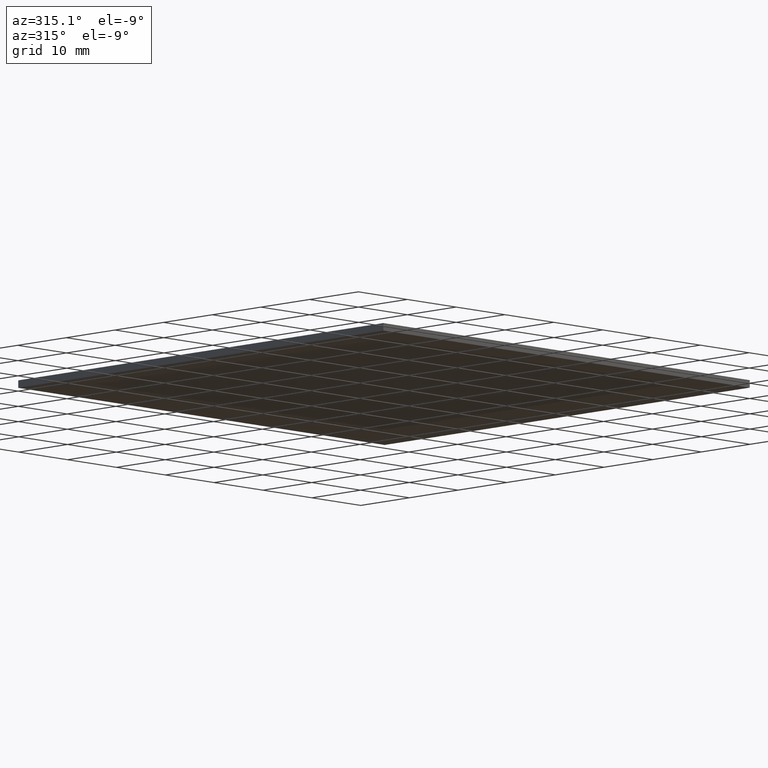
[diagram: clean part render]
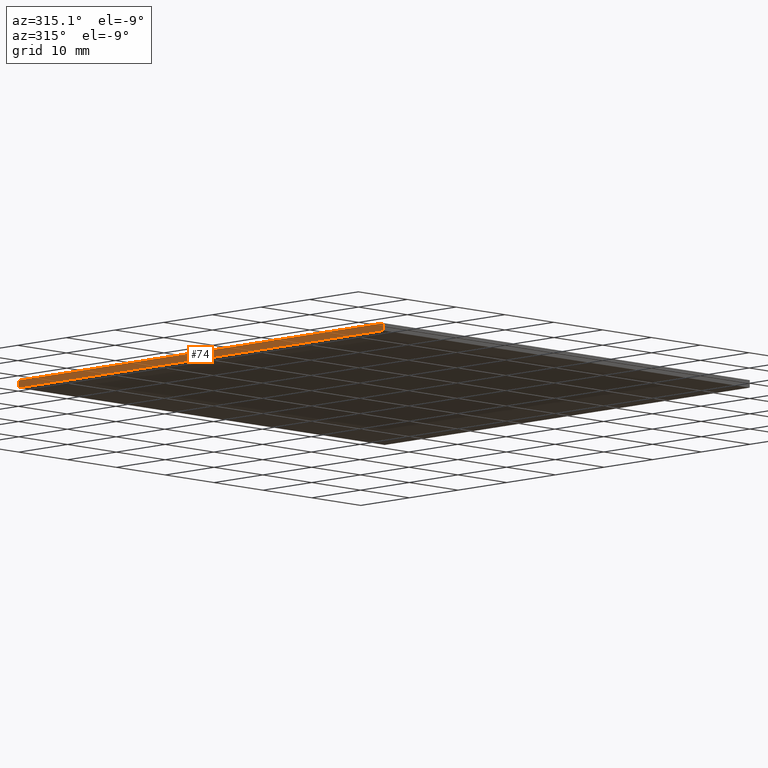
[diagram: same view with one face highlighted and labeled with its STEP entity id]
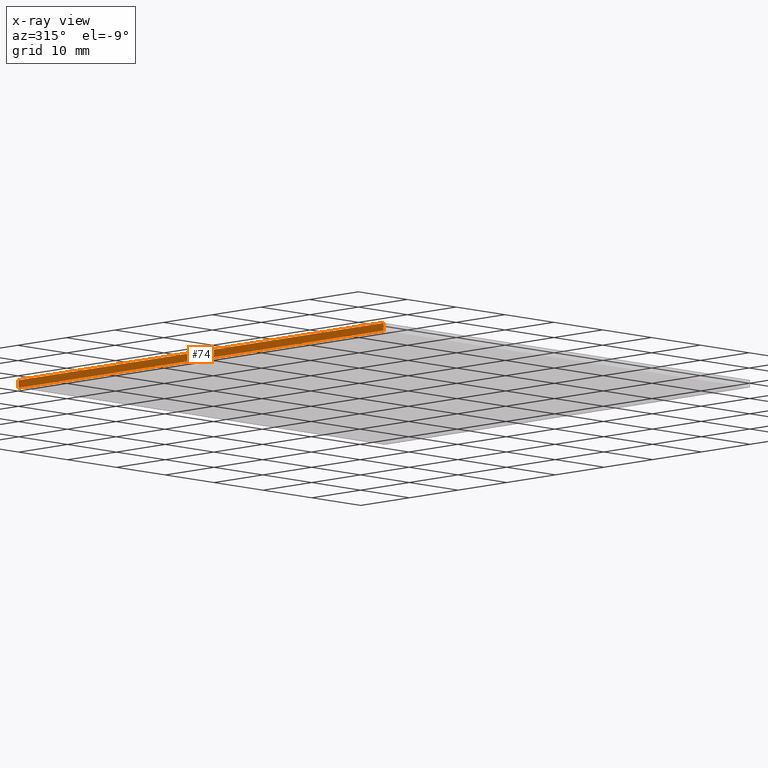
[diagram: x-ray of the same camera — body ghosted, the highlighted face saturated]
A machine part, auxiliary view. The second image highlights one B-rep face of the part: STEP entity #74.
The next image is the same camera in x-ray: the body ghosted, the highlighted face saturated — about 0% of this face is hidden behind the body in this view.
In plain terms, the highlighted planar face has unit normal (1, 0, -0).
Its self-contained STEP definition (entity closure, byte-faithful):
#2 = VERTEX_POINT ( 'NONE', #134 ) ;
#5 = VERTEX_POINT ( 'NONE', #63 ) ;
#10 = ORIENTED_EDGE ( 'NONE', *, *, #257, .F. ) ;
#17 = DIRECTION ( 'NONE',  ( -0.0000000000000000000, -0.0000000000000000000, -1.000000000000000000 ) ) ;
#24 = LINE ( 'NONE', #70, #287 ) ;
#25 = ORIENTED_EDGE ( 'NONE', *, *, #236, .F. ) ;
#32 = DIRECTION ( 'NONE',  ( 1.000000000000000000, 1.387778780781445700E-016, -0.0000000000000000000 ) ) ;
#51 = LINE ( 'NONE', #263, #246 ) ;
#57 = CARTESIAN_POINT ( 'NONE',  ( -24.99999999999998900, -49.99999999999999300, 1.100000000000000100 ) ) ;
#62 = LINE ( 'NONE', #283, #76 ) ;
#63 = CARTESIAN_POINT ( 'NONE',  ( -24.99999999999998900, -49.99999999999999300, 0.0000000000000000000 ) ) ;
#68 = DIRECTION ( 'NONE',  ( -0.0000000000000000000, -0.0000000000000000000, -1.000000000000000000 ) ) ;
#70 = CARTESIAN_POINT ( 'NONE',  ( -25.00000000000000000, 25.00000000000000000, 0.0000000000000000000 ) ) ;
#74 = ADVANCED_FACE ( 'NONE', ( #264 ), #156, .F. ) ;
#76 = VECTOR ( 'NONE', #68, 1000.000000000000000 ) ;
#108 = VECTOR ( 'NONE', #261, 1000.000000000000000 ) ;
#109 = CARTESIAN_POINT ( 'NONE',  ( -25.00000000000000000, 25.00000000000000000, 1.100000000000000100 ) ) ;
#121 = ORIENTED_EDGE ( 'NONE', *, *, #184, .T. ) ;
#123 = ORIENTED_EDGE ( 'NONE', *, *, #315, .T. ) ;
#134 = CARTESIAN_POINT ( 'NONE',  ( -25.00000000000000000, 25.00000000000000000, 0.0000000000000000000 ) ) ;
#151 = VERTEX_POINT ( 'NONE', #109 ) ;
#155 = CARTESIAN_POINT ( 'NONE',  ( -25.00000000000000000, 25.00000000000000000, 1.100000000000000100 ) ) ;
#156 = PLANE ( 'NONE',  #305 ) ;
#160 = VERTEX_POINT ( 'NONE', #57 ) ;
#184 = EDGE_CURVE ( 'NONE', #151, #2, #51, .T. ) ;
#199 = EDGE_LOOP ( 'NONE', ( #123, #10, #25, #121 ) ) ;
#213 = CARTESIAN_POINT ( 'NONE',  ( -25.00000000000000000, 25.00000000000000000, 1.100000000000000100 ) ) ;
#233 = DIRECTION ( 'NONE',  ( -1.387778780781445700E-016, 1.000000000000000000, 0.0000000000000000000 ) ) ;
#236 = EDGE_CURVE ( 'NONE', #151, #160, #295, .T. ) ;
#242 = DIRECTION ( 'NONE',  ( 1.387778780781445700E-016, -1.000000000000000000, 0.0000000000000000000 ) ) ;
#246 = VECTOR ( 'NONE', #17, 1000.000000000000000 ) ;
#257 = EDGE_CURVE ( 'NONE', #160, #5, #62, .T. ) ;
#261 = DIRECTION ( 'NONE',  ( 1.387778780781445700E-016, -1.000000000000000000, 0.0000000000000000000 ) ) ;
#263 = CARTESIAN_POINT ( 'NONE',  ( -25.00000000000000000, 25.00000000000000000, 1.100000000000000100 ) ) ;
#264 = FACE_OUTER_BOUND ( 'NONE', #199, .T. ) ;
#283 = CARTESIAN_POINT ( 'NONE',  ( -24.99999999999998900, -49.99999999999999300, 1.100000000000000100 ) ) ;
#287 = VECTOR ( 'NONE', #242, 1000.000000000000000 ) ;
#295 = LINE ( 'NONE', #213, #108 ) ;
#305 = AXIS2_PLACEMENT_3D ( 'NONE', #155, #32, #233 ) ;
#315 = EDGE_CURVE ( 'NONE', #2, #5, #24, .T. ) ;